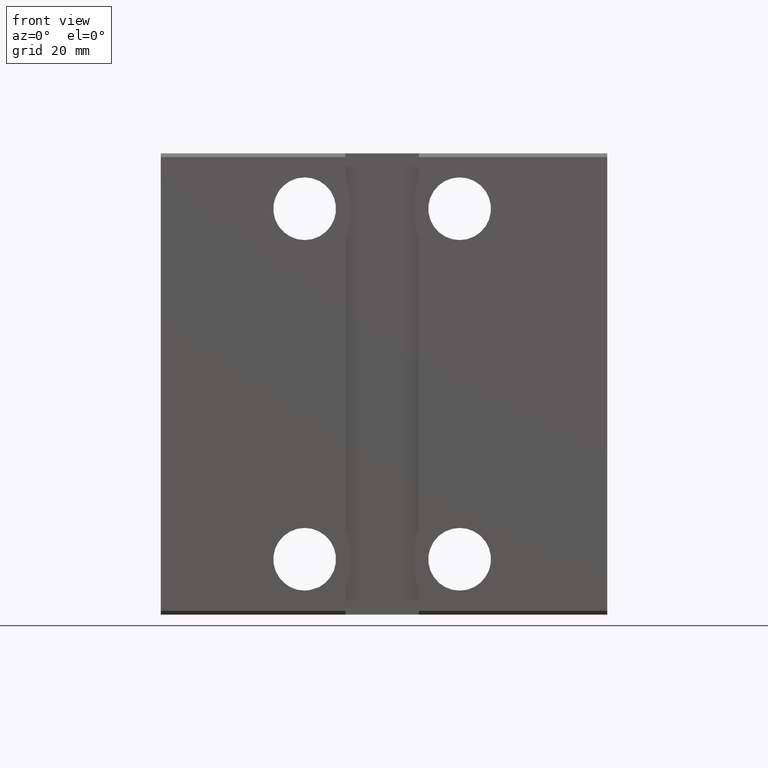
[diagram: clean part render]
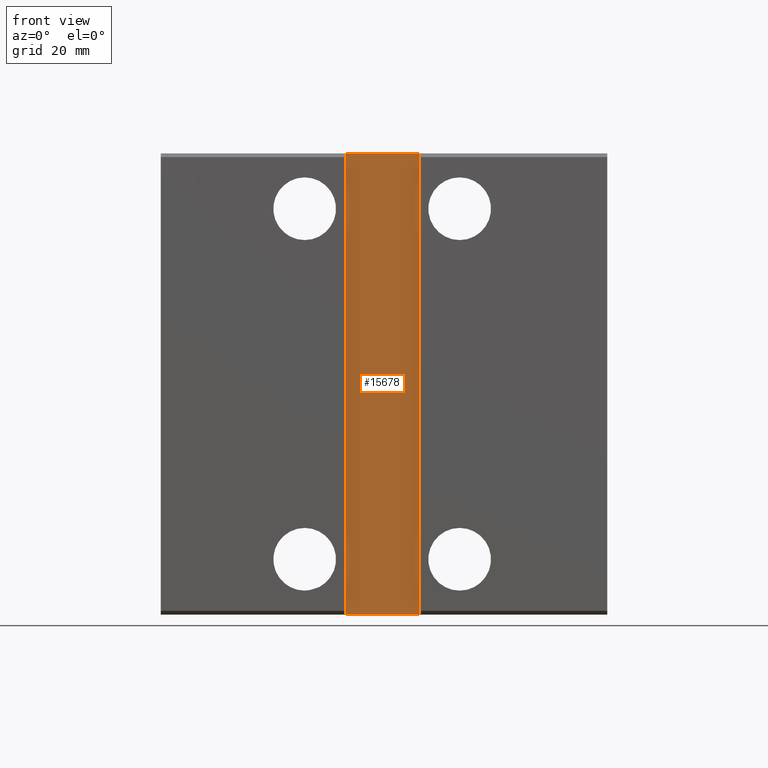
[diagram: same view with one face highlighted and labeled with its STEP entity id]
A machine part, front view. The second image highlights one B-rep face of the part: STEP entity #15678.
In plain terms, the highlighted planar face has unit normal (0, -1, 0).
Its self-contained STEP definition (entity closure, byte-faithful):
#180 = LINE ( 'NONE', #13196, #15268 ) ;
#452 = DIRECTION ( 'NONE',  ( 1.000000000000000000, 0.000000000000000000, 0.000000000000000000 ) ) ;
#5283 = VERTEX_POINT ( 'NONE', #29519 ) ;
#5933 = CARTESIAN_POINT ( 'NONE',  ( 0.000000000000000000, -45.50000000000000711, 1.101411730778925047E-16 ) ) ;
#6146 = PLANE ( 'NONE',  #9534 ) ;
#7059 = CARTESIAN_POINT ( 'NONE',  ( 49.99999999999998579, -45.50000000000000711, 62.49999999999997868 ) ) ;
#7278 = EDGE_CURVE ( 'NONE', #9099, #38980, #17044, .T. ) ;
#7479 = LINE ( 'NONE', #7059, #34669 ) ;
#7868 = DIRECTION ( 'NONE',  ( -1.110223024625156540E-16, -0.000000000000000000, 1.000000000000000000 ) ) ;
#9099 = VERTEX_POINT ( 'NONE', #9563 ) ;
#9534 = AXIS2_PLACEMENT_3D ( 'NONE', #5933, #28759, #39164 ) ;
#9563 = CARTESIAN_POINT ( 'NONE',  ( 70.00000000000001421, -45.50000000000000711, -62.50000000000002842 ) ) ;
#12272 = VECTOR ( 'NONE', #452, 1000.000000000000000 ) ;
#12409 = EDGE_CURVE ( 'NONE', #38980, #32563, #7479, .T. ) ;
#13196 = CARTESIAN_POINT ( 'NONE',  ( 49.99999999999998579, -45.50000000000000711, 62.49999999999997868 ) ) ;
#13546 = CARTESIAN_POINT ( 'NONE',  ( 70.00000000000000000, -45.50000000000000711, 62.49999999999997868 ) ) ;
#14896 = VECTOR ( 'NONE', #7868, 1000.000000000000000 ) ;
#15268 = VECTOR ( 'NONE', #26203, 1000.000000000000000 ) ;
#15306 = ORIENTED_EDGE ( 'NONE', *, *, #15572, .T. ) ;
#15572 = EDGE_CURVE ( 'NONE', #5283, #9099, #29274, .T. ) ;
#15678 = ADVANCED_FACE ( 'NONE', ( #38957 ), #6146, .T. ) ;
#17044 = LINE ( 'NONE', #36852, #14896 ) ;
#17567 = EDGE_LOOP ( 'NONE', ( #41016, #23508, #19190, #15306 ) ) ;
#19190 = ORIENTED_EDGE ( 'NONE', *, *, #25286, .T. ) ;
#20484 = DIRECTION ( 'NONE',  ( -1.000000000000000000, -0.000000000000000000, -0.000000000000000000 ) ) ;
#21375 = CARTESIAN_POINT ( 'NONE',  ( 49.99999999999998579, -45.50000000000000711, 62.49999999999997868 ) ) ;
#23508 = ORIENTED_EDGE ( 'NONE', *, *, #12409, .T. ) ;
#25286 = EDGE_CURVE ( 'NONE', #32563, #5283, #180, .T. ) ;
#26066 = CARTESIAN_POINT ( 'NONE',  ( 50.00000000000000000, -45.50000000000000711, -62.50000000000002842 ) ) ;
#26203 = DIRECTION ( 'NONE',  ( 1.110223024625156540E-16, 0.000000000000000000, -1.000000000000000000 ) ) ;
#28759 = DIRECTION ( 'NONE',  ( 0.000000000000000000, -1.000000000000000000, 0.000000000000000000 ) ) ;
#29274 = LINE ( 'NONE', #26066, #12272 ) ;
#29519 = CARTESIAN_POINT ( 'NONE',  ( 50.00000000000000000, -45.50000000000000711, -62.50000000000002842 ) ) ;
#32563 = VERTEX_POINT ( 'NONE', #21375 ) ;
#34669 = VECTOR ( 'NONE', #20484, 1000.000000000000000 ) ;
#36852 = CARTESIAN_POINT ( 'NONE',  ( 70.00000000000000000, -45.50000000000000711, 62.49999999999997868 ) ) ;
#38957 = FACE_OUTER_BOUND ( 'NONE', #17567, .T. ) ;
#38980 = VERTEX_POINT ( 'NONE', #13546 ) ;
#39164 = DIRECTION ( 'NONE',  ( 0.000000000000000000, -0.000000000000000000, -1.000000000000000000 ) ) ;
#41016 = ORIENTED_EDGE ( 'NONE', *, *, #7278, .T. ) ;